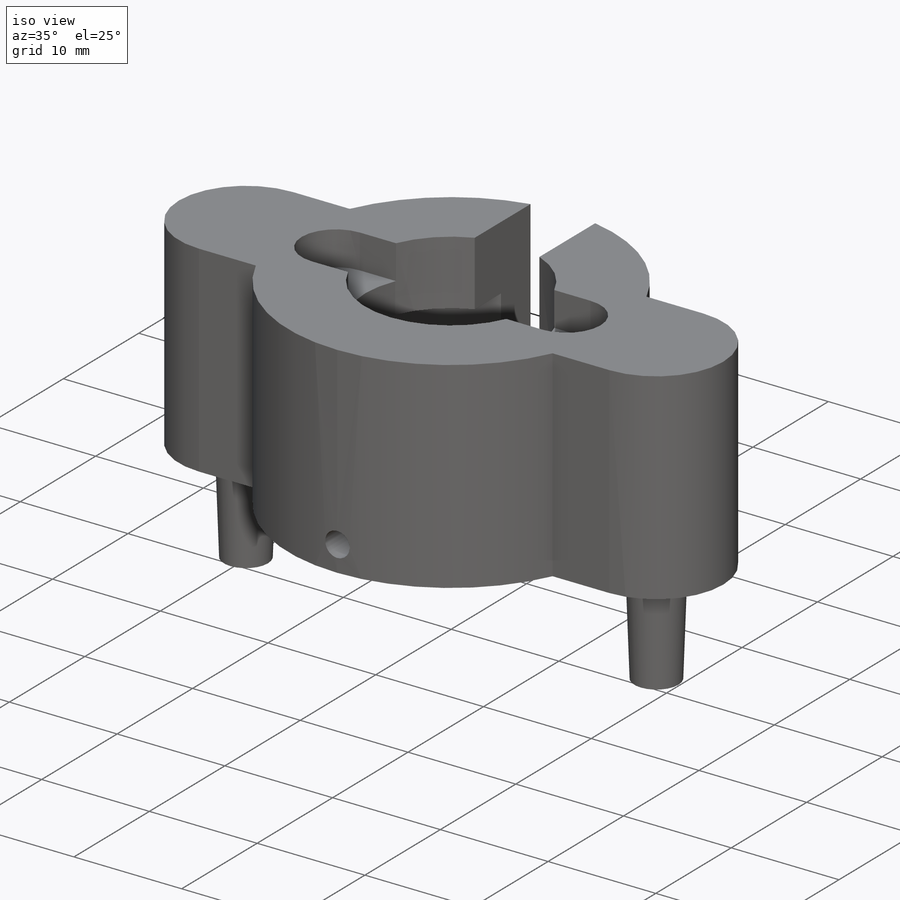
[diagram: iso view]
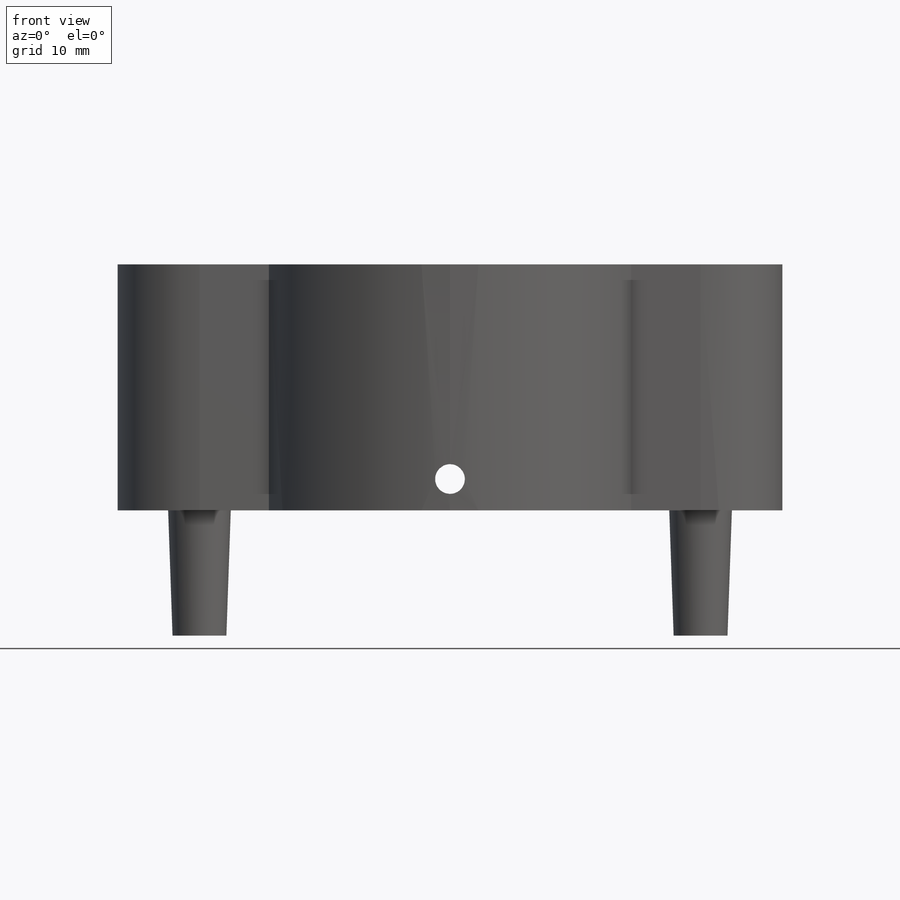
[diagram: front view]
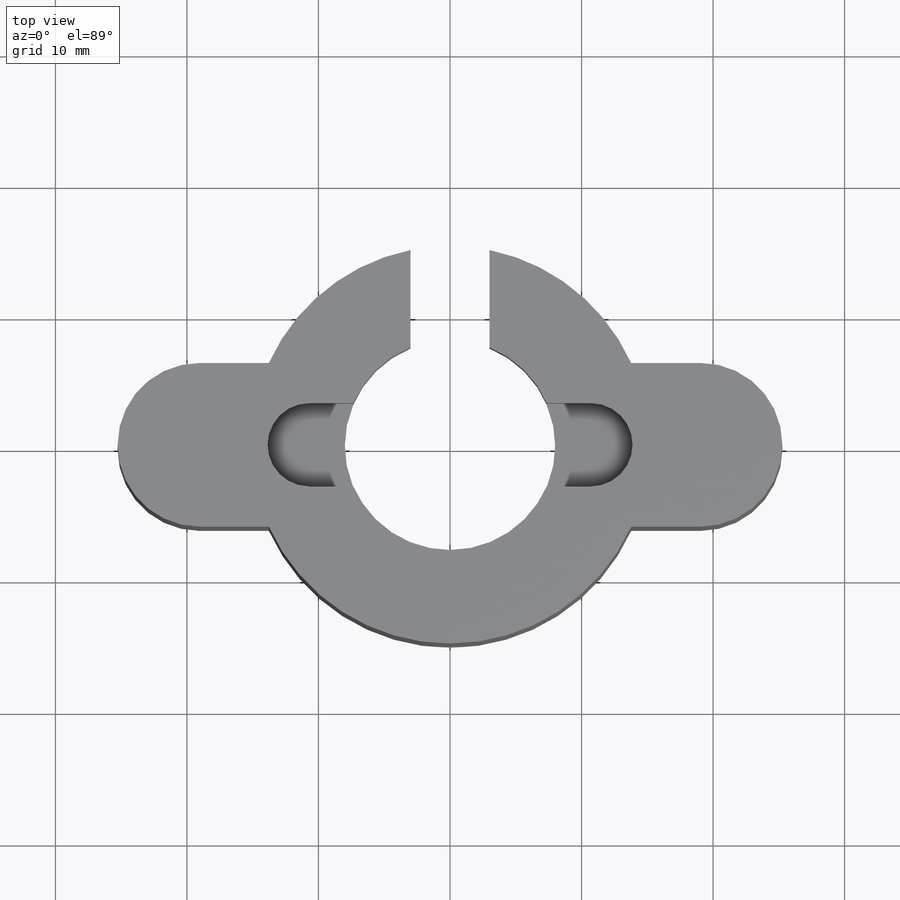
[diagram: top view]
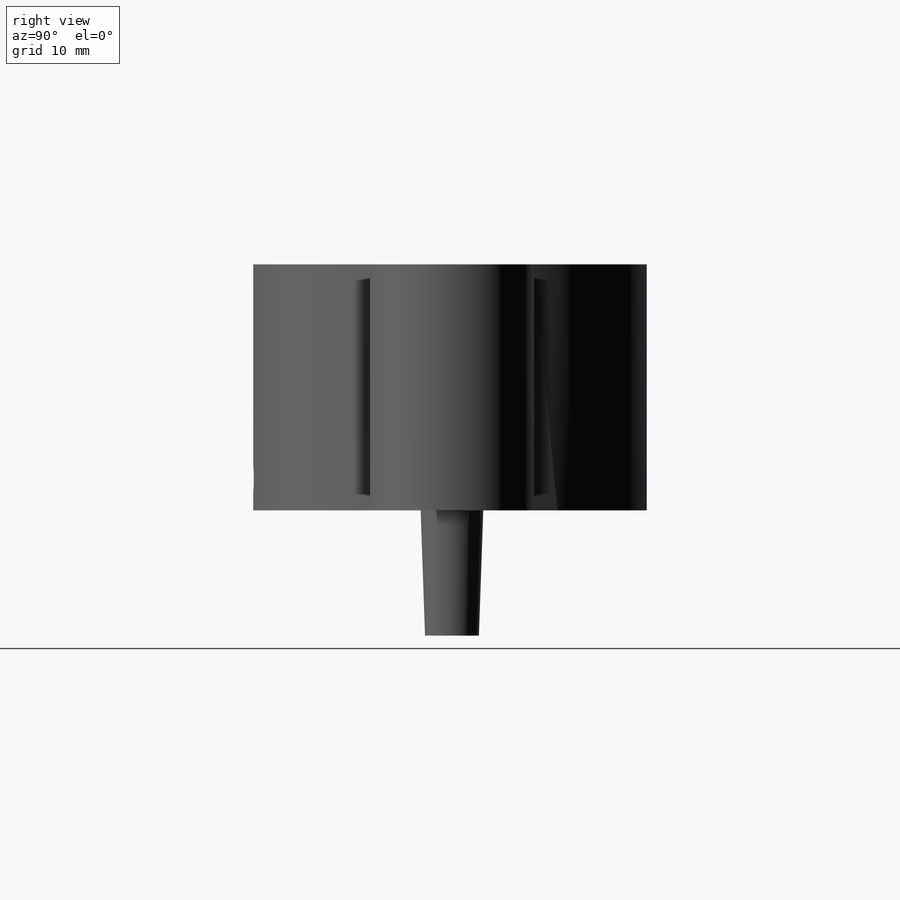
[diagram: right view]
SOLIDWORKS PART (.sldprt)
format: sldprt  version: not decoded by parser v0  size: 336,896 bytes
history: native  units: mm
features: sketch x12, extrude x3, hole x3, cut_extrude x3, plane x2, material x1, pattern_circular x1, mirror x1 (+11 scaffold rows collapsed)
feature tree (37):
  scaffold x11  (default folders/planes/origin — collapsed)
  material  "Material <not specified>"
  sketch  "Sketch1"  dims[c1.D1=22.606mm c1.D2=22.606mm c1.D3=4.826mm c1.D4=~6.040307mm c1.D6=~10.046638mm c1.D7=15.113mm c2.D2=3.81mm c2.D4=19.05mm c2.D5=19.05mm c2.D6=3.81mm c2.D7=~6.812112mm]
  extrude  "Boss-Extrude1"  Depth=12.7mm
  plane  "Plane1"
  hole  "#4-40 Tapped Hole1"  Diameter=2.2606mm Depth=30.226mm
  sketch  "Sketch3"  dims[D1=~2.38125mm]
  sketch  "Sketch4"  dims[hole-wizard template sketch: 60 standard entries collapsed; hole parameters kept: c18.Thru Tap Drill Depth=30.226mm]
  plane  "Plane2"
  hole  "#4-40 Tapped Hole3"  Diameter=2.2606mm Depth=9.525mm
  sketch  "Sketch8"  dims[D1=12.7mm]
  sketch  "Sketch9"  dims[hole-wizard template sketch: 60 standard entries collapsed; hole parameters kept: c18.Thru Tap Drill Depth=9.525mm]
  pattern_circular  "CirPattern1"  Count=6 Angle=360deg
  sketch  "Sketch10"  dims[D1=4.7625mm]
  extrude  "Boss-Extrude2"  Depth=9.525mm
  sketch  "Sketch14"  dims[D1=16.0mm]
  extrude  "Boss-Extrude3"  Depth=6mm
  hole  "#2 Clearance Hole1"  Diameter=2.4384mm Depth=5.08mm
  sketch  "Sketch18"  dims[D1=21.4mm D2=~4.514078mm]
  sketch  "Sketch17"  dims[hole-wizard template sketch: 47 standard entries collapsed; hole parameters kept: c15.Hole Depth=5.08mm c15.D3=~14.816244mm c15.Drill Angle=118.0deg]
  sketch  "Sketch19"  dims[c1.D1=~2.166785mm c1.D2=~5.360792mm c2.D1=4.5mm c2.D2=2.0mm c2.D3=2.0mm]
  cut_extrude  "Cut-Extrude2"  Depth=14mm
  mirror  "Mirror2"
  sketch  "Sketch20"  dims[c1.D1=~15.993334mm c1.D2=~5.763831mm c2.D1=6.0mm]
  cut_extrude  "Cut-Extrude3"  [1 undecoded]
  sketch  "Sketch21"  dims[D2=3.175mm D1=21.4mm]
  cut_extrude  "Cut-Extrude4"  Depth=3.175mm
decode coverage: 21 of 23 modeling features carry decoded parameters
note: ~ marks probable driven/reference dimensions
note: 1 parameter value undecoded
note: suppression state not decoded; provenance and decode notes live in map.json
